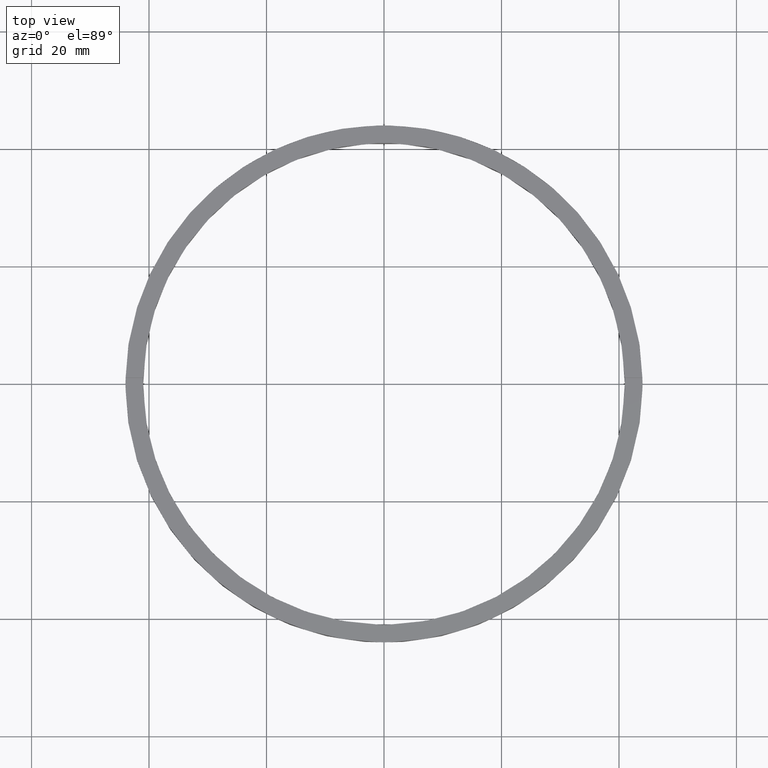
[diagram: clean part render]
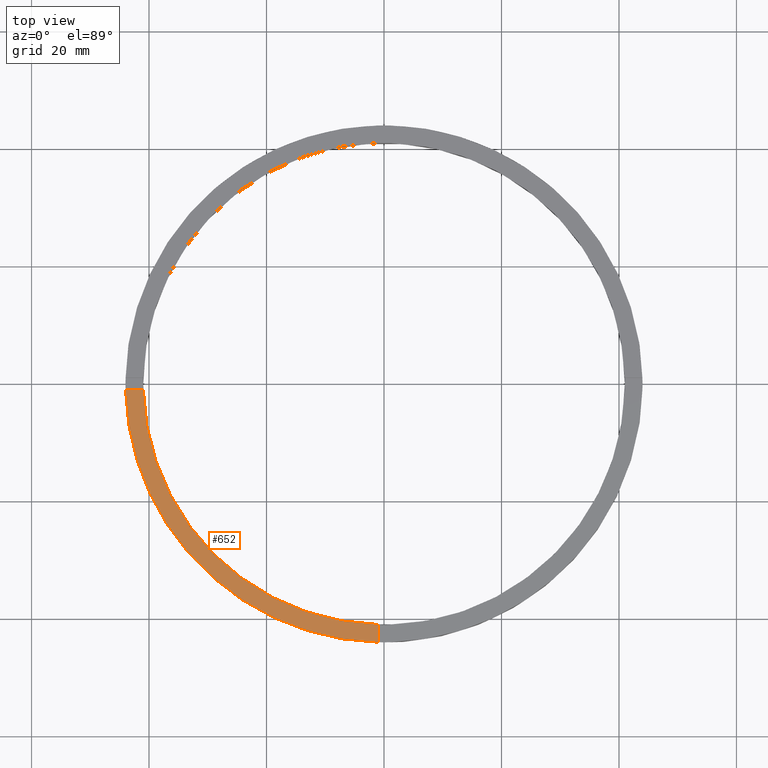
[diagram: same view with one face highlighted and labeled with its STEP entity id]
A machine part, top view. The second image highlights one B-rep face of the part: STEP entity #652.
In plain terms, the highlighted planar face has unit normal (0, 0, 1).
Its self-contained STEP definition (entity closure, byte-faithful):
#3 = VERTEX_POINT ( 'NONE', #537 ) ;
#15 = DIRECTION ( 'NONE',  ( 1.000000000000000000, 0.000000000000000000, 0.000000000000000000 ) ) ;
#27 = VECTOR ( 'NONE', #55, 1000.000000000000000 ) ;
#53 = CARTESIAN_POINT ( 'NONE',  ( 0.000000000000000000, 0.000000000000000000, 4.000000000000000000 ) ) ;
#55 = DIRECTION ( 'NONE',  ( 1.301042606982605074E-16, -1.000000000000000000, 0.000000000000000000 ) ) ;
#81 = DIRECTION ( 'NONE',  ( 1.000000000000000000, 0.000000000000000000, 0.000000000000000000 ) ) ;
#163 = AXIS2_PLACEMENT_3D ( 'NONE', #53, #668, #335 ) ;
#165 = DIRECTION ( 'NONE',  ( 0.000000000000000000, 0.000000000000000000, 1.000000000000000000 ) ) ;
#178 = ORIENTED_EDGE ( 'NONE', *, *, #533, .F. ) ;
#204 = DIRECTION ( 'NONE',  ( 1.000000000000000000, 1.951563910473907735E-16, -0.000000000000000000 ) ) ;
#210 = ORIENTED_EDGE ( 'NONE', *, *, #624, .T. ) ;
#213 = CARTESIAN_POINT ( 'NONE',  ( -34.00000000000018474, -1.000000000000027534, 4.000000000000000000 ) ) ;
#262 = LINE ( 'NONE', #383, #27 ) ;
#283 = CIRCLE ( 'NONE', #382, 44.00000000000000000 ) ;
#295 = VECTOR ( 'NONE', #204, 1000.000000000000000 ) ;
#298 = LINE ( 'NONE', #213, #295 ) ;
#303 = DIRECTION ( 'NONE',  ( 0.000000000000000000, 0.000000000000000000, 1.000000000000000000 ) ) ;
#335 = DIRECTION ( 'NONE',  ( 1.000000000000000000, 0.000000000000000000, -0.000000000000000000 ) ) ;
#339 = PLANE ( 'NONE',  #163 ) ;
#382 = AXIS2_PLACEMENT_3D ( 'NONE', #771, #303, #81 ) ;
#383 = CARTESIAN_POINT ( 'NONE',  ( -1.000000000000159650, -34.00000000000017764, 4.000000000000000000 ) ) ;
#386 = CARTESIAN_POINT ( 'NONE',  ( -1.000000000000158318, -43.98863489584553577, 4.000000000000000000 ) ) ;
#431 = VERTEX_POINT ( 'NONE', #535 ) ;
#442 = AXIS2_PLACEMENT_3D ( 'NONE', #715, #165, #15 ) ;
#447 = ORIENTED_EDGE ( 'NONE', *, *, #503, .F. ) ;
#486 = EDGE_LOOP ( 'NONE', ( #525, #447, #178, #210 ) ) ;
#503 = EDGE_CURVE ( 'NONE', #700, #431, #568, .T. ) ;
#525 = ORIENTED_EDGE ( 'NONE', *, *, #566, .F. ) ;
#529 = CARTESIAN_POINT ( 'NONE',  ( -40.98780306383839900, -1.000000000000028866, 4.000000000000000000 ) ) ;
#533 = EDGE_CURVE ( 'NONE', #3, #700, #298, .T. ) ;
#535 = CARTESIAN_POINT ( 'NONE',  ( -1.000000000000158540, -40.98780306383839189, 4.000000000000000000 ) ) ;
#537 = CARTESIAN_POINT ( 'NONE',  ( -43.98863489584553577, -1.000000000000029532, 4.000000000000000000 ) ) ;
#554 = FACE_OUTER_BOUND ( 'NONE', #486, .T. ) ;
#566 = EDGE_CURVE ( 'NONE', #431, #596, #262, .T. ) ;
#568 = CIRCLE ( 'NONE', #442, 41.00000000000000000 ) ;
#596 = VERTEX_POINT ( 'NONE', #386 ) ;
#624 = EDGE_CURVE ( 'NONE', #3, #596, #283, .T. ) ;
#652 = ADVANCED_FACE ( 'NONE', ( #554 ), #339, .T. ) ;
#668 = DIRECTION ( 'NONE',  ( 0.000000000000000000, 0.000000000000000000, 1.000000000000000000 ) ) ;
#700 = VERTEX_POINT ( 'NONE', #529 ) ;
#715 = CARTESIAN_POINT ( 'NONE',  ( 0.000000000000000000, 0.000000000000000000, 4.000000000000000000 ) ) ;
#771 = CARTESIAN_POINT ( 'NONE',  ( 0.000000000000000000, 0.000000000000000000, 4.000000000000000000 ) ) ;